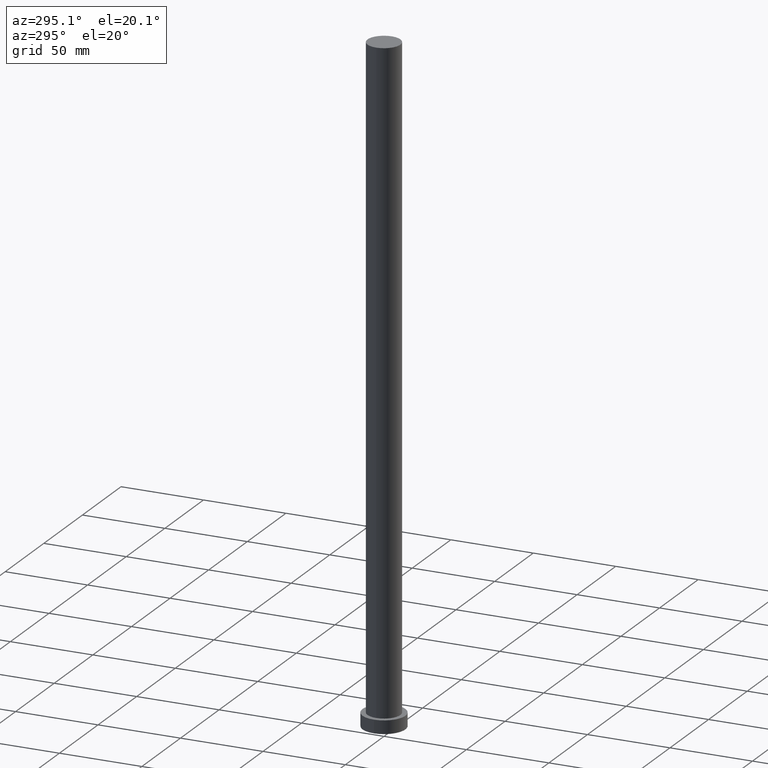
[diagram: clean part render]
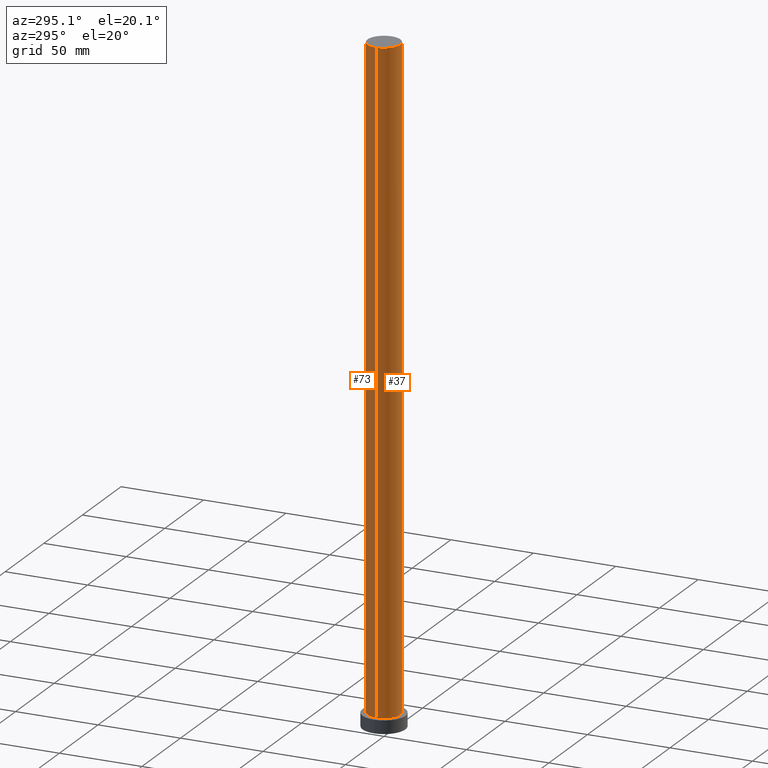
[diagram: same view with one multi-face feature highlighted, each face labeled with its STEP entity id]
A machine part, auxiliary view. The highlighted faces form ONE feature: a constant-radius fillet chain: 2 tangent blend faces with common blend radius 10 mm. The faces share edges in the B-rep.
Their STEP definitions:
[1] entity #73 (Cylinder):
#9 = DIRECTION ( 'NONE',  ( 1.000000000000000000, 0.000000000000000000, 0.000000000000000000 ) ) ;
#10 = EDGE_CURVE ( 'NONE', #106, #205, #84, .T. ) ;
#12 = ORIENTED_EDGE ( 'NONE', *, *, #141, .F. ) ;
#18 = CARTESIAN_POINT ( 'NONE',  ( -10.00000000000000000, 0.000000000000000000, 8.000000000000000000 ) ) ;
#28 = VERTEX_POINT ( 'NONE', #82 ) ;
#30 = LINE ( 'NONE', #113, #78 ) ;
#32 = CARTESIAN_POINT ( 'NONE',  ( 0.000000000000000000, 0.000000000000000000, 8.000000000000000000 ) ) ;
#52 = CYLINDRICAL_SURFACE ( 'NONE', #58, 10.00000000000000000 ) ;
#58 = AXIS2_PLACEMENT_3D ( 'NONE', #254, #96, #251 ) ;
#68 = CARTESIAN_POINT ( 'NONE',  ( 0.000000000000000000, 0.000000000000000000, 400.0000000000000000 ) ) ;
#69 = ORIENTED_EDGE ( 'NONE', *, *, #109, .T. ) ;
#73 = ADVANCED_FACE ( 'NONE', ( #131 ), #52, .T. ) ;
#74 = CARTESIAN_POINT ( 'NONE',  ( 10.00000000000000000, 1.224646799147353256E-15, 400.0000000000000000 ) ) ;
#78 = VECTOR ( 'NONE', #116, 1000.000000000000000 ) ;
#79 = DIRECTION ( 'NONE',  ( -0.000000000000000000, -0.000000000000000000, -1.000000000000000000 ) ) ;
#82 = CARTESIAN_POINT ( 'NONE',  ( 10.00000000000000000, 1.224646799147353256E-15, 8.000000000000000000 ) ) ;
#84 = CIRCLE ( 'NONE', #222, 10.00000000000000000 ) ;
#96 = DIRECTION ( 'NONE',  ( -0.000000000000000000, -0.000000000000000000, -1.000000000000000000 ) ) ;
#106 = VERTEX_POINT ( 'NONE', #74 ) ;
#109 = EDGE_CURVE ( 'NONE', #106, #28, #213, .T. ) ;
#113 = CARTESIAN_POINT ( 'NONE',  ( -10.00000000000000000, 0.000000000000000000, 400.0000000000000000 ) ) ;
#116 = DIRECTION ( 'NONE',  ( -0.000000000000000000, -0.000000000000000000, -1.000000000000000000 ) ) ;
#120 = CIRCLE ( 'NONE', #187, 10.00000000000000000 ) ;
#131 = FACE_OUTER_BOUND ( 'NONE', #189, .T. ) ;
#140 = DIRECTION ( 'NONE',  ( 1.000000000000000000, 0.000000000000000000, 0.000000000000000000 ) ) ;
#141 = EDGE_CURVE ( 'NONE', #205, #169, #30, .T. ) ;
#169 = VERTEX_POINT ( 'NONE', #18 ) ;
#181 = VECTOR ( 'NONE', #79, 1000.000000000000000 ) ;
#185 = EDGE_CURVE ( 'NONE', #28, #169, #120, .T. ) ;
#187 = AXIS2_PLACEMENT_3D ( 'NONE', #32, #192, #140 ) ;
#188 = ORIENTED_EDGE ( 'NONE', *, *, #185, .T. ) ;
#189 = EDGE_LOOP ( 'NONE', ( #225, #69, #188, #12 ) ) ;
#192 = DIRECTION ( 'NONE',  ( 0.000000000000000000, 0.000000000000000000, 1.000000000000000000 ) ) ;
#193 = CARTESIAN_POINT ( 'NONE',  ( 10.00000000000000000, 1.224646799147353256E-15, 400.0000000000000000 ) ) ;
#205 = VERTEX_POINT ( 'NONE', #232 ) ;
#213 = LINE ( 'NONE', #193, #181 ) ;
#222 = AXIS2_PLACEMENT_3D ( 'NONE', #68, #226, #9 ) ;
#225 = ORIENTED_EDGE ( 'NONE', *, *, #10, .F. ) ;
#226 = DIRECTION ( 'NONE',  ( 0.000000000000000000, 0.000000000000000000, 1.000000000000000000 ) ) ;
#232 = CARTESIAN_POINT ( 'NONE',  ( -10.00000000000000000, 0.000000000000000000, 400.0000000000000000 ) ) ;
#251 = DIRECTION ( 'NONE',  ( -1.000000000000000000, 0.000000000000000000, 0.000000000000000000 ) ) ;
#254 = CARTESIAN_POINT ( 'NONE',  ( 0.000000000000000000, 0.000000000000000000, 400.0000000000000000 ) ) ;
[2] entity #37 (Cylinder):
#1 = DIRECTION ( 'NONE',  ( -0.000000000000000000, -0.000000000000000000, -1.000000000000000000 ) ) ;
#18 = CARTESIAN_POINT ( 'NONE',  ( -10.00000000000000000, 0.000000000000000000, 8.000000000000000000 ) ) ;
#20 = DIRECTION ( 'NONE',  ( 0.000000000000000000, 0.000000000000000000, 1.000000000000000000 ) ) ;
#28 = VERTEX_POINT ( 'NONE', #82 ) ;
#30 = LINE ( 'NONE', #113, #78 ) ;
#37 = ADVANCED_FACE ( 'NONE', ( #190 ), #160, .T. ) ;
#74 = CARTESIAN_POINT ( 'NONE',  ( 10.00000000000000000, 1.224646799147353256E-15, 400.0000000000000000 ) ) ;
#75 = CIRCLE ( 'NONE', #155, 10.00000000000000000 ) ;
#78 = VECTOR ( 'NONE', #116, 1000.000000000000000 ) ;
#79 = DIRECTION ( 'NONE',  ( -0.000000000000000000, -0.000000000000000000, -1.000000000000000000 ) ) ;
#80 = DIRECTION ( 'NONE',  ( 1.000000000000000000, 0.000000000000000000, 0.000000000000000000 ) ) ;
#82 = CARTESIAN_POINT ( 'NONE',  ( 10.00000000000000000, 1.224646799147353256E-15, 8.000000000000000000 ) ) ;
#106 = VERTEX_POINT ( 'NONE', #74 ) ;
#109 = EDGE_CURVE ( 'NONE', #106, #28, #213, .T. ) ;
#110 = AXIS2_PLACEMENT_3D ( 'NONE', #207, #1, #114 ) ;
#111 = CARTESIAN_POINT ( 'NONE',  ( 0.000000000000000000, 0.000000000000000000, 8.000000000000000000 ) ) ;
#113 = CARTESIAN_POINT ( 'NONE',  ( -10.00000000000000000, 0.000000000000000000, 400.0000000000000000 ) ) ;
#114 = DIRECTION ( 'NONE',  ( -1.000000000000000000, 0.000000000000000000, 0.000000000000000000 ) ) ;
#116 = DIRECTION ( 'NONE',  ( -0.000000000000000000, -0.000000000000000000, -1.000000000000000000 ) ) ;
#125 = ORIENTED_EDGE ( 'NONE', *, *, #109, .F. ) ;
#137 = AXIS2_PLACEMENT_3D ( 'NONE', #144, #20, #180 ) ;
#141 = EDGE_CURVE ( 'NONE', #205, #169, #30, .T. ) ;
#144 = CARTESIAN_POINT ( 'NONE',  ( 0.000000000000000000, 0.000000000000000000, 400.0000000000000000 ) ) ;
#149 = EDGE_LOOP ( 'NONE', ( #125, #172, #186, #247 ) ) ;
#155 = AXIS2_PLACEMENT_3D ( 'NONE', #111, #175, #80 ) ;
#160 = CYLINDRICAL_SURFACE ( 'NONE', #110, 10.00000000000000000 ) ;
#169 = VERTEX_POINT ( 'NONE', #18 ) ;
#172 = ORIENTED_EDGE ( 'NONE', *, *, #220, .F. ) ;
#175 = DIRECTION ( 'NONE',  ( 0.000000000000000000, 0.000000000000000000, 1.000000000000000000 ) ) ;
#180 = DIRECTION ( 'NONE',  ( 1.000000000000000000, 0.000000000000000000, 0.000000000000000000 ) ) ;
#181 = VECTOR ( 'NONE', #79, 1000.000000000000000 ) ;
#183 = CIRCLE ( 'NONE', #137, 10.00000000000000000 ) ;
#186 = ORIENTED_EDGE ( 'NONE', *, *, #141, .T. ) ;
#190 = FACE_OUTER_BOUND ( 'NONE', #149, .T. ) ;
#191 = EDGE_CURVE ( 'NONE', #169, #28, #75, .T. ) ;
#193 = CARTESIAN_POINT ( 'NONE',  ( 10.00000000000000000, 1.224646799147353256E-15, 400.0000000000000000 ) ) ;
#205 = VERTEX_POINT ( 'NONE', #232 ) ;
#207 = CARTESIAN_POINT ( 'NONE',  ( 0.000000000000000000, 0.000000000000000000, 400.0000000000000000 ) ) ;
#213 = LINE ( 'NONE', #193, #181 ) ;
#220 = EDGE_CURVE ( 'NONE', #205, #106, #183, .T. ) ;
#232 = CARTESIAN_POINT ( 'NONE',  ( -10.00000000000000000, 0.000000000000000000, 400.0000000000000000 ) ) ;
#247 = ORIENTED_EDGE ( 'NONE', *, *, #191, .T. ) ;